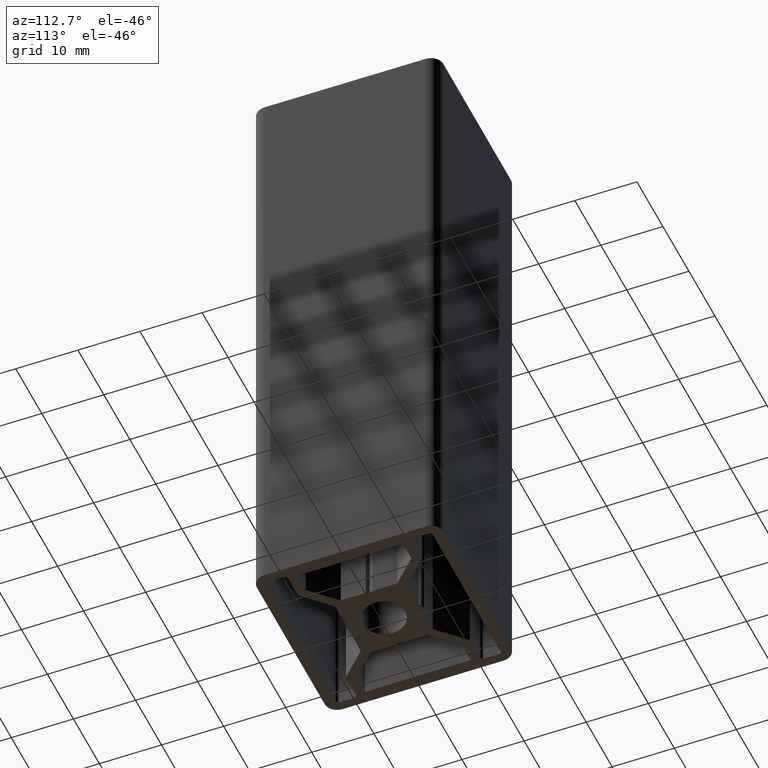
[diagram: clean part render]
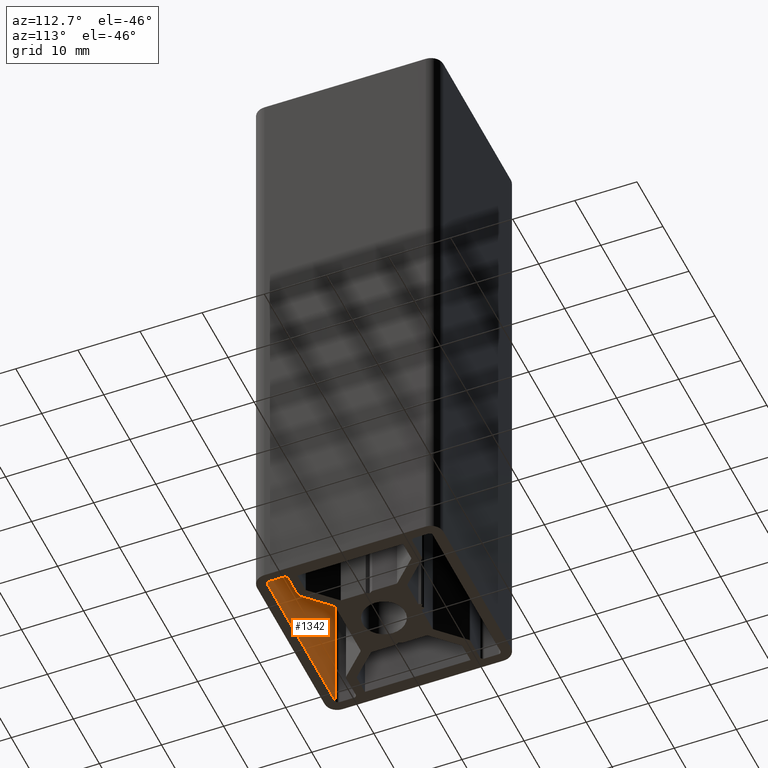
[diagram: same view with one face highlighted and labeled with its STEP entity id]
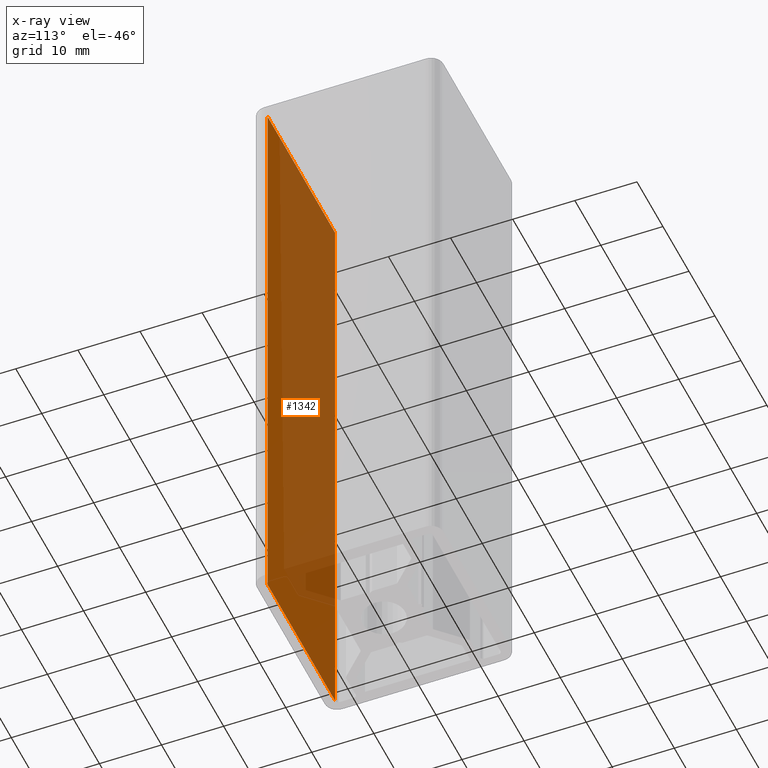
[diagram: x-ray of the same camera — body ghosted, the highlighted face saturated]
A machine part, auxiliary view. The second image highlights one B-rep face of the part: STEP entity #1342.
The next image is the same camera in x-ray: the body ghosted, the highlighted face saturated — about 69% of this face is hidden behind the body in this view.
In plain terms, the highlighted planar face has unit normal (0, -1, 0).
Its self-contained STEP definition (entity closure, byte-faithful):
#125=FACE_OUTER_BOUND('',#193,.T.);
#193=EDGE_LOOP('',(#993,#994,#995,#996));
#304=LINE('',#2060,#455);
#305=LINE('',#2063,#456);
#306=LINE('',#2065,#457);
#307=LINE('',#2066,#458);
#455=VECTOR('',#1676,100.);
#456=VECTOR('',#1679,25.9999999959493);
#457=VECTOR('',#1680,25.9999999959493);
#458=VECTOR('',#1681,100.);
#604=VERTEX_POINT('',#2056);
#605=VERTEX_POINT('',#2058);
#606=VERTEX_POINT('',#2062);
#607=VERTEX_POINT('',#2064);
#766=EDGE_CURVE('',#605,#604,#304,.T.);
#767=EDGE_CURVE('',#604,#606,#305,.T.);
#768=EDGE_CURVE('',#607,#605,#306,.T.);
#769=EDGE_CURVE('',#606,#607,#307,.T.);
#993=ORIENTED_EDGE('',*,*,#767,.F.);
#994=ORIENTED_EDGE('',*,*,#766,.F.);
#995=ORIENTED_EDGE('',*,*,#768,.F.);
#996=ORIENTED_EDGE('',*,*,#769,.F.);
#1283=PLANE('',#1440);
#1342=ADVANCED_FACE('',(#125),#1283,.F.);
#1440=AXIS2_PLACEMENT_3D('',#2061,#1677,#1678);
#1676=DIRECTION('',(0.,0.,1.));
#1677=DIRECTION('center_axis',(8.54017711383173E-17,-1.,0.));
#1678=DIRECTION('ref_axis',(1.,0.,0.));
#1679=DIRECTION('',(-1.,-8.54017711383173E-17,0.));
#1680=DIRECTION('',(1.,8.54017711383173E-17,0.));
#1681=DIRECTION('',(0.,0.,-1.));
#2056=CARTESIAN_POINT('',(12.9999999918996,-13.3000000121406,100.));
#2058=CARTESIAN_POINT('',(12.9999999918996,-13.3000000121406,0.));
#2060=CARTESIAN_POINT('',(12.9999999918996,-13.3000000121406,0.));
#2061=CARTESIAN_POINT('Origin',(-13.0000000040497,-13.3000000121406,0.));
#2062=CARTESIAN_POINT('',(-13.0000000040497,-13.3000000121406,100.));
#2063=CARTESIAN_POINT('',(-6.50000000202485,-13.3000000121406,100.));
#2064=CARTESIAN_POINT('',(-13.0000000040497,-13.3000000121406,0.));
#2065=CARTESIAN_POINT('',(-6.50000000202485,-13.3000000121406,0.));
#2066=CARTESIAN_POINT('',(-13.0000000040497,-13.3000000121406,0.));